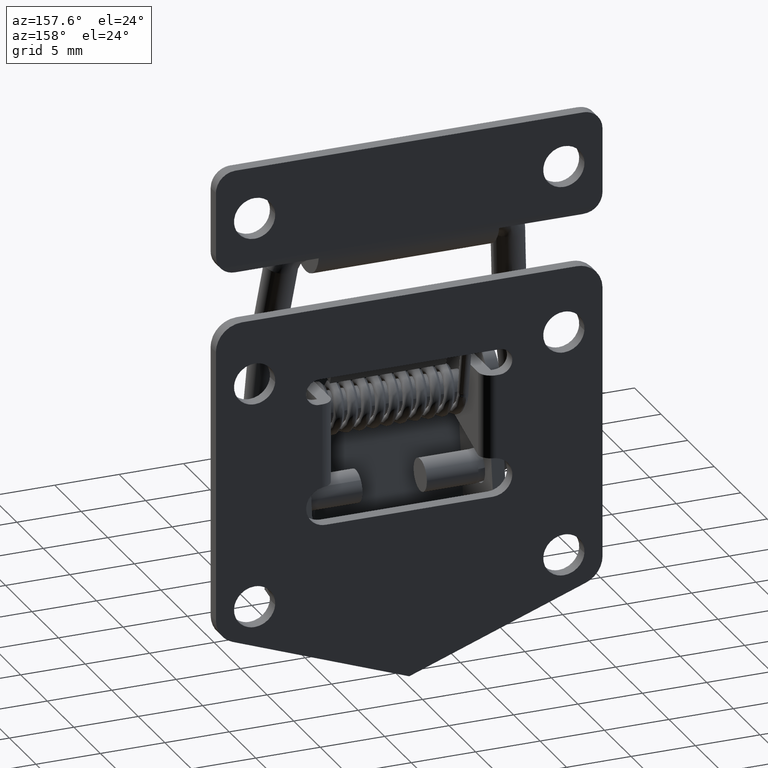
[diagram: clean part render]
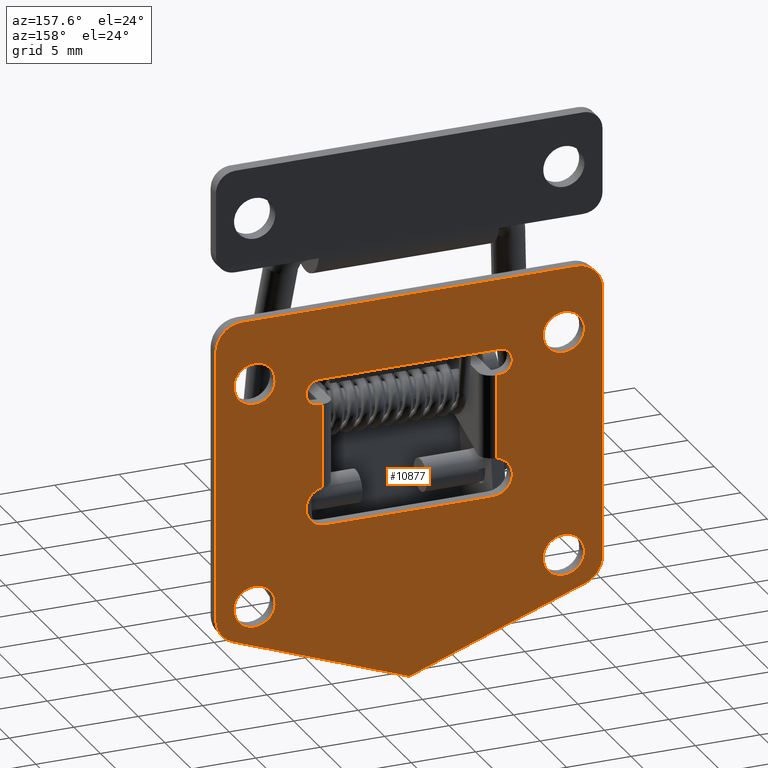
[diagram: same view with one face highlighted and labeled with its STEP entity id]
A machine part, auxiliary view. The second image highlights one B-rep face of the part: STEP entity #10877.
In plain terms, the highlighted face is a freeform B-spline surface patch.
Its self-contained STEP definition (entity closure, byte-faithful):
#8929=CARTESIAN_POINT('',(2.499999999999945,-11.999999999999821,-7.150000000000001));
#8930=VERTEX_POINT('',#8929);
#8931=CARTESIAN_POINT('',(2.499999999999945,-13.595067733969360,-8.624465446791469));
#8932=VERTEX_POINT('',#8931);
#8933=CARTESIAN_POINT('',(2.499999999999945,-11.999999999999821,-7.150000000000001));
#8934=CARTESIAN_POINT('',(2.499999999999945,-13.479024786571138,-7.150000000000001));
#8935=CARTESIAN_POINT('',(2.499999999999945,-13.595067733969358,-8.624465446791469));
#8943=(BOUNDED_CURVE()B_SPLINE_CURVE(2,(#8933,#8934,#8935),.UNSPECIFIED.,.F.,.U.)B_SPLINE_CURVE_WITH_KNOTS((3,3),(0.0,0.236331300623314),.UNSPECIFIED.)CURVE()GEOMETRIC_REPRESENTATION_ITEM()RATIONAL_B_SPLINE_CURVE((1.0,0.723120658616272,0.969723356152087))REPRESENTATION_ITEM(''));
#8944=EDGE_CURVE('',#8930,#8932,#8943,.T.);
#8985=CARTESIAN_POINT('',(2.499999999999945,-10.404932266030279,-8.875534553208532));
#8986=VERTEX_POINT('',#8985);
#8992=CARTESIAN_POINT('',(2.499999999999945,-10.404932266030272,-8.875534553208532));
#8993=CARTESIAN_POINT('',(2.499999999999945,-10.399999999999819,-8.812864171256456));
#8994=CARTESIAN_POINT('',(2.499999999999945,-10.399999999999819,-8.750000000000000));
#8995=CARTESIAN_POINT('',(2.499999999999945,-10.399999999999819,-7.150000000000002));
#8996=CARTESIAN_POINT('',(2.499999999999945,-11.999999999999821,-7.150000000000001));
#9004=(BOUNDED_CURVE()B_SPLINE_CURVE(2,(#8992,#8993,#8994,#8995,#8996),.UNSPECIFIED.,.F.,.U.)B_SPLINE_CURVE_WITH_KNOTS((3,2,3),(0.736331300623314,0.750000000000000,1.0),.UNSPECIFIED.)CURVE()GEOMETRIC_REPRESENTATION_ITEM()RATIONAL_B_SPLINE_CURVE((0.969723356152087,0.983986122570276,1.0,0.707106781186548,1.0))REPRESENTATION_ITEM(''));
#9005=EDGE_CURVE('',#8986,#8930,#9004,.T.);
#9028=CARTESIAN_POINT('',(2.499999999999945,-11.999999999999821,-10.350000000000000));
#9029=VERTEX_POINT('',#9028);
#9030=CARTESIAN_POINT('',(2.499999999999945,-13.595067733969364,-8.624465446791469));
#9031=CARTESIAN_POINT('',(2.499999999999945,-13.599999999999817,-8.687135828743545));
#9032=CARTESIAN_POINT('',(2.499999999999945,-13.599999999999820,-8.750000000000000));
#9033=CARTESIAN_POINT('',(2.499999999999945,-13.599999999999818,-10.350000000000001));
#9034=CARTESIAN_POINT('',(2.499999999999945,-11.999999999999821,-10.350000000000000));
#9042=(BOUNDED_CURVE()B_SPLINE_CURVE(2,(#9030,#9031,#9032,#9033,#9034),.UNSPECIFIED.,.F.,.U.)B_SPLINE_CURVE_WITH_KNOTS((3,2,3),(0.236331300623314,0.250000000000000,0.500000000000000),.UNSPECIFIED.)CURVE()GEOMETRIC_REPRESENTATION_ITEM()RATIONAL_B_SPLINE_CURVE((0.969723356152088,0.983986122570276,1.0,0.707106781186548,1.0))REPRESENTATION_ITEM(''));
#9043=EDGE_CURVE('',#8932,#9029,#9042,.T.);
#9045=CARTESIAN_POINT('',(2.499999999999945,-11.999999999999821,-10.350000000000000));
#9046=CARTESIAN_POINT('',(2.499999999999945,-10.520975213428502,-10.350000000000001));
#9047=CARTESIAN_POINT('',(2.499999999999945,-10.404932266030274,-8.875534553208532));
#9055=(BOUNDED_CURVE()B_SPLINE_CURVE(2,(#9045,#9046,#9047),.UNSPECIFIED.,.F.,.U.)B_SPLINE_CURVE_WITH_KNOTS((3,3),(0.500000000000000,0.736331300623314),.UNSPECIFIED.)CURVE()GEOMETRIC_REPRESENTATION_ITEM()RATIONAL_B_SPLINE_CURVE((1.0,0.723120658616272,0.969723356152087))REPRESENTATION_ITEM(''));
#9056=EDGE_CURVE('',#9029,#8986,#9055,.T.);
#9111=CARTESIAN_POINT('',(2.499999999999945,-11.999999999999821,-24.649999999999999));
#9112=VERTEX_POINT('',#9111);
#9113=CARTESIAN_POINT('',(2.499999999999945,-13.595067733969360,-26.124465446791469));
#9114=VERTEX_POINT('',#9113);
#9115=CARTESIAN_POINT('',(2.499999999999945,-11.999999999999821,-24.649999999999999));
#9116=CARTESIAN_POINT('',(2.499999999999945,-13.479024786571136,-24.649999999999995));
#9117=CARTESIAN_POINT('',(2.499999999999945,-13.595067733969360,-26.124465446791465));
#9125=(BOUNDED_CURVE()B_SPLINE_CURVE(2,(#9115,#9116,#9117),.UNSPECIFIED.,.F.,.U.)B_SPLINE_CURVE_WITH_KNOTS((3,3),(0.0,0.236331300623314),.UNSPECIFIED.)CURVE()GEOMETRIC_REPRESENTATION_ITEM()RATIONAL_B_SPLINE_CURVE((1.0,0.723120658616272,0.969723356152087))REPRESENTATION_ITEM(''));
#9126=EDGE_CURVE('',#9112,#9114,#9125,.T.);
#9167=CARTESIAN_POINT('',(2.499999999999945,-10.404932266030279,-26.375534553208531));
#9168=VERTEX_POINT('',#9167);
#9174=CARTESIAN_POINT('',(2.499999999999945,-10.404932266030277,-26.375534553208531));
#9175=CARTESIAN_POINT('',(2.499999999999945,-10.399999999999817,-26.312864171256457));
#9176=CARTESIAN_POINT('',(2.499999999999945,-10.399999999999819,-26.250000000000000));
#9177=CARTESIAN_POINT('',(2.499999999999945,-10.399999999999819,-24.650000000000002));
#9178=CARTESIAN_POINT('',(2.499999999999945,-11.999999999999821,-24.649999999999999));
#9186=(BOUNDED_CURVE()B_SPLINE_CURVE(2,(#9174,#9175,#9176,#9177,#9178),.UNSPECIFIED.,.F.,.U.)B_SPLINE_CURVE_WITH_KNOTS((3,2,3),(0.736331300623314,0.750000000000000,1.0),.UNSPECIFIED.)CURVE()GEOMETRIC_REPRESENTATION_ITEM()RATIONAL_B_SPLINE_CURVE((0.969723356152088,0.983986122570276,1.0,0.707106781186548,1.0))REPRESENTATION_ITEM(''));
#9187=EDGE_CURVE('',#9168,#9112,#9186,.T.);
#9210=CARTESIAN_POINT('',(2.499999999999945,-11.999999999999821,-27.850000000000001));
#9211=VERTEX_POINT('',#9210);
#9212=CARTESIAN_POINT('',(2.499999999999945,-13.595067733969367,-26.124465446791472));
#9213=CARTESIAN_POINT('',(2.499999999999945,-13.599999999999817,-26.187135828743539));
#9214=CARTESIAN_POINT('',(2.499999999999945,-13.599999999999820,-26.250000000000000));
#9215=CARTESIAN_POINT('',(2.499999999999945,-13.599999999999818,-27.850000000000001));
#9216=CARTESIAN_POINT('',(2.499999999999945,-11.999999999999821,-27.850000000000001));
#9224=(BOUNDED_CURVE()B_SPLINE_CURVE(2,(#9212,#9213,#9214,#9215,#9216),.UNSPECIFIED.,.F.,.U.)B_SPLINE_CURVE_WITH_KNOTS((3,2,3),(0.236331300623314,0.250000000000000,0.500000000000000),.UNSPECIFIED.)CURVE()GEOMETRIC_REPRESENTATION_ITEM()RATIONAL_B_SPLINE_CURVE((0.969723356152087,0.983986122570276,1.0,0.707106781186548,1.0))REPRESENTATION_ITEM(''));
#9225=EDGE_CURVE('',#9114,#9211,#9224,.T.);
#9227=CARTESIAN_POINT('',(2.499999999999945,-11.999999999999821,-27.850000000000001));
#9228=CARTESIAN_POINT('',(2.499999999999945,-10.520975213428502,-27.849999999999994));
#9229=CARTESIAN_POINT('',(2.499999999999945,-10.404932266030274,-26.375534553208531));
#9237=(BOUNDED_CURVE()B_SPLINE_CURVE(2,(#9227,#9228,#9229),.UNSPECIFIED.,.F.,.U.)B_SPLINE_CURVE_WITH_KNOTS((3,3),(0.500000000000000,0.736331300623314),.UNSPECIFIED.)CURVE()GEOMETRIC_REPRESENTATION_ITEM()RATIONAL_B_SPLINE_CURVE((1.0,0.723120658616272,0.969723356152087))REPRESENTATION_ITEM(''));
#9238=EDGE_CURVE('',#9211,#9168,#9237,.T.);
#9293=CARTESIAN_POINT('',(2.499999999999945,12.0,-24.649999999999999));
#9294=VERTEX_POINT('',#9293);
#9295=CARTESIAN_POINT('',(2.499999999999945,10.404932266030460,-26.124465446791469));
#9296=VERTEX_POINT('',#9295);
#9297=CARTESIAN_POINT('',(2.499999999999945,12.0,-24.649999999999999));
#9298=CARTESIAN_POINT('',(2.499999999999945,10.520975213428681,-24.649999999999995));
#9299=CARTESIAN_POINT('',(2.499999999999945,10.404932266030460,-26.124465446791465));
#9307=(BOUNDED_CURVE()B_SPLINE_CURVE(2,(#9297,#9298,#9299),.UNSPECIFIED.,.F.,.U.)B_SPLINE_CURVE_WITH_KNOTS((3,3),(0.0,0.236331300623314),.UNSPECIFIED.)CURVE()GEOMETRIC_REPRESENTATION_ITEM()RATIONAL_B_SPLINE_CURVE((1.0,0.723120658616272,0.969723356152087))REPRESENTATION_ITEM(''));
#9308=EDGE_CURVE('',#9294,#9296,#9307,.T.);
#9349=CARTESIAN_POINT('',(2.499999999999945,13.595067733969540,-26.375534553208531));
#9350=VERTEX_POINT('',#9349);
#9356=CARTESIAN_POINT('',(2.499999999999945,13.595067733969547,-26.375534553208531));
#9357=CARTESIAN_POINT('',(2.499999999999945,13.600000000000007,-26.312864171256457));
#9358=CARTESIAN_POINT('',(2.499999999999945,13.600000000000000,-26.250000000000000));
#9359=CARTESIAN_POINT('',(2.499999999999945,13.600000000000003,-24.650000000000002));
#9360=CARTESIAN_POINT('',(2.499999999999945,12.0,-24.649999999999999));
#9368=(BOUNDED_CURVE()B_SPLINE_CURVE(2,(#9356,#9357,#9358,#9359,#9360),.UNSPECIFIED.,.F.,.U.)B_SPLINE_CURVE_WITH_KNOTS((3,2,3),(0.736331300623314,0.750000000000000,1.0),.UNSPECIFIED.)CURVE()GEOMETRIC_REPRESENTATION_ITEM()RATIONAL_B_SPLINE_CURVE((0.969723356152088,0.983986122570276,1.0,0.707106781186548,1.0))REPRESENTATION_ITEM(''));
#9369=EDGE_CURVE('',#9350,#9294,#9368,.T.);
#9392=CARTESIAN_POINT('',(2.499999999999945,12.0,-27.850000000000001));
#9393=VERTEX_POINT('',#9392);
#9394=CARTESIAN_POINT('',(2.499999999999945,10.404932266030457,-26.124465446791472));
#9395=CARTESIAN_POINT('',(2.499999999999945,10.400000000000002,-26.187135828743539));
#9396=CARTESIAN_POINT('',(2.499999999999945,10.400000000000000,-26.250000000000000));
#9397=CARTESIAN_POINT('',(2.499999999999945,10.400000000000000,-27.850000000000001));
#9398=CARTESIAN_POINT('',(2.499999999999945,12.0,-27.850000000000001));
#9406=(BOUNDED_CURVE()B_SPLINE_CURVE(2,(#9394,#9395,#9396,#9397,#9398),.UNSPECIFIED.,.F.,.U.)B_SPLINE_CURVE_WITH_KNOTS((3,2,3),(0.236331300623314,0.250000000000000,0.500000000000000),.UNSPECIFIED.)CURVE()GEOMETRIC_REPRESENTATION_ITEM()RATIONAL_B_SPLINE_CURVE((0.969723356152087,0.983986122570276,1.0,0.707106781186548,1.0))REPRESENTATION_ITEM(''));
#9407=EDGE_CURVE('',#9296,#9393,#9406,.T.);
#9409=CARTESIAN_POINT('',(2.499999999999945,12.0,-27.850000000000001));
#9410=CARTESIAN_POINT('',(2.499999999999945,13.479024786571321,-27.849999999999994));
#9411=CARTESIAN_POINT('',(2.499999999999945,13.595067733969547,-26.375534553208531));
#9419=(BOUNDED_CURVE()B_SPLINE_CURVE(2,(#9409,#9410,#9411),.UNSPECIFIED.,.F.,.U.)B_SPLINE_CURVE_WITH_KNOTS((3,3),(0.500000000000000,0.736331300623314),.UNSPECIFIED.)CURVE()GEOMETRIC_REPRESENTATION_ITEM()RATIONAL_B_SPLINE_CURVE((1.0,0.723120658616272,0.969723356152087))REPRESENTATION_ITEM(''));
#9420=EDGE_CURVE('',#9393,#9350,#9419,.T.);
#9475=CARTESIAN_POINT('',(2.499999999999945,12.0,-7.150000000000001));
#9476=VERTEX_POINT('',#9475);
#9477=CARTESIAN_POINT('',(2.499999999999945,10.404932266030460,-8.624465446791469));
#9478=VERTEX_POINT('',#9477);
#9479=CARTESIAN_POINT('',(2.499999999999945,12.0,-7.150000000000001));
#9480=CARTESIAN_POINT('',(2.499999999999945,10.520975213428681,-7.150000000000002));
#9481=CARTESIAN_POINT('',(2.499999999999945,10.404932266030460,-8.624465446791469));
#9489=(BOUNDED_CURVE()B_SPLINE_CURVE(2,(#9479,#9480,#9481),.UNSPECIFIED.,.F.,.U.)B_SPLINE_CURVE_WITH_KNOTS((3,3),(0.0,0.236331300623314),.UNSPECIFIED.)CURVE()GEOMETRIC_REPRESENTATION_ITEM()RATIONAL_B_SPLINE_CURVE((1.0,0.723120658616272,0.969723356152087))REPRESENTATION_ITEM(''));
#9490=EDGE_CURVE('',#9476,#9478,#9489,.T.);
#9531=CARTESIAN_POINT('',(2.499999999999945,13.595067733969540,-8.875534553208532));
#9532=VERTEX_POINT('',#9531);
#9538=CARTESIAN_POINT('',(2.499999999999945,13.595067733969543,-8.875534553208532));
#9539=CARTESIAN_POINT('',(2.499999999999945,13.600000000000000,-8.812864171256456));
#9540=CARTESIAN_POINT('',(2.499999999999945,13.600000000000000,-8.750000000000000));
#9541=CARTESIAN_POINT('',(2.499999999999945,13.600000000000003,-7.150000000000002));
#9542=CARTESIAN_POINT('',(2.499999999999945,12.0,-7.150000000000001));
#9550=(BOUNDED_CURVE()B_SPLINE_CURVE(2,(#9538,#9539,#9540,#9541,#9542),.UNSPECIFIED.,.F.,.U.)B_SPLINE_CURVE_WITH_KNOTS((3,2,3),(0.736331300623314,0.750000000000000,1.0),.UNSPECIFIED.)CURVE()GEOMETRIC_REPRESENTATION_ITEM()RATIONAL_B_SPLINE_CURVE((0.969723356152087,0.983986122570276,1.0,0.707106781186548,1.0))REPRESENTATION_ITEM(''));
#9551=EDGE_CURVE('',#9532,#9476,#9550,.T.);
#9574=CARTESIAN_POINT('',(2.499999999999945,12.0,-10.350000000000000));
#9575=VERTEX_POINT('',#9574);
#9576=CARTESIAN_POINT('',(2.499999999999945,10.404932266030460,-8.624465446791469));
#9577=CARTESIAN_POINT('',(2.499999999999945,10.400000000000004,-8.687135828743545));
#9578=CARTESIAN_POINT('',(2.499999999999945,10.400000000000000,-8.750000000000000));
#9579=CARTESIAN_POINT('',(2.499999999999945,10.400000000000000,-10.350000000000001));
#9580=CARTESIAN_POINT('',(2.499999999999945,12.0,-10.350000000000000));
#9588=(BOUNDED_CURVE()B_SPLINE_CURVE(2,(#9576,#9577,#9578,#9579,#9580),.UNSPECIFIED.,.F.,.U.)B_SPLINE_CURVE_WITH_KNOTS((3,2,3),(0.236331300623314,0.250000000000000,0.500000000000000),.UNSPECIFIED.)CURVE()GEOMETRIC_REPRESENTATION_ITEM()RATIONAL_B_SPLINE_CURVE((0.969723356152087,0.983986122570276,1.0,0.707106781186548,1.0))REPRESENTATION_ITEM(''));
#9589=EDGE_CURVE('',#9478,#9575,#9588,.T.);
#9591=CARTESIAN_POINT('',(2.499999999999945,12.0,-10.350000000000000));
#9592=CARTESIAN_POINT('',(2.499999999999945,13.479024786571321,-10.350000000000001));
#9593=CARTESIAN_POINT('',(2.499999999999945,13.595067733969547,-8.875534553208532));
#9601=(BOUNDED_CURVE()B_SPLINE_CURVE(2,(#9591,#9592,#9593),.UNSPECIFIED.,.F.,.U.)B_SPLINE_CURVE_WITH_KNOTS((3,3),(0.500000000000000,0.736331300623314),.UNSPECIFIED.)CURVE()GEOMETRIC_REPRESENTATION_ITEM()RATIONAL_B_SPLINE_CURVE((1.0,0.723120658616272,0.969723356152087))REPRESENTATION_ITEM(''));
#9602=EDGE_CURVE('',#9575,#9532,#9601,.T.);
#9653=CARTESIAN_POINT('',(2.499999999999945,6.750000000000000,-17.770980054224999));
#9654=VERTEX_POINT('',#9653);
#9664=CARTESIAN_POINT('',(2.499999999999945,6.750000000000000,-11.250000000000000));
#9665=VERTEX_POINT('',#9664);
#9666=CARTESIAN_POINT('',(2.499999999999945,6.750000000000000,-11.250000000000000));
#9667=CARTESIAN_POINT('',(2.499999999999945,6.750000000000000,-17.770980054224999));
#9668=QUASI_UNIFORM_CURVE('',1,(#9666,#9667),.UNSPECIFIED.,.F.,.U.);
#9669=EDGE_CURVE('',#9665,#9654,#9668,.T.);
#9723=CARTESIAN_POINT('',(2.499999999999945,-6.749999999999830,-11.250000000000000));
#9724=VERTEX_POINT('',#9723);
#9740=CARTESIAN_POINT('',(2.499999999999945,-6.749999999999830,-17.770980054224999));
#9741=VERTEX_POINT('',#9740);
#9742=CARTESIAN_POINT('',(2.499999999999945,-6.749999999999830,-17.770980054224999));
#9743=CARTESIAN_POINT('',(2.499999999999945,-6.749999999999830,-11.250000000000000));
#9744=QUASI_UNIFORM_CURVE('',1,(#9742,#9743),.UNSPECIFIED.,.F.,.U.);
#9745=EDGE_CURVE('',#9741,#9724,#9744,.T.);
#10053=CARTESIAN_POINT('',(2.500000000000000,6.999999947640291,-9.250000000000000));
#10054=VERTEX_POINT('',#10053);
#10060=CARTESIAN_POINT('',(2.499999999999945,-7.0,-9.250000000000000));
#10061=VERTEX_POINT('',#10060);
#10062=CARTESIAN_POINT('',(2.500000000000000,6.999999947640291,-9.250000000000000));
#10063=CARTESIAN_POINT('',(2.499999999999945,-7.0,-9.250000000000000));
#10064=QUASI_UNIFORM_CURVE('',1,(#10062,#10063),.UNSPECIFIED.,.F.,.U.);
#10065=EDGE_CURVE('',#10054,#10061,#10064,.T.);
#10112=CARTESIAN_POINT('',(2.499999999999945,7.000000000000171,-11.250000000000000));
#10113=VERTEX_POINT('',#10112);
#10119=CARTESIAN_POINT('',(2.499999999999945,7.000000000000171,-11.250000000000000));
#10120=CARTESIAN_POINT('',(2.499999999999945,7.577350280825325,-11.250000000000000));
#10121=CARTESIAN_POINT('',(2.499999999999945,7.866025412511255,-10.749999984885010));
#10122=CARTESIAN_POINT('',(2.499999999999945,8.154700544197185,-10.249999969770011));
#10123=CARTESIAN_POINT('',(2.499999999999945,7.866025386331317,-9.749999969770011));
#10124=CARTESIAN_POINT('',(2.499999999999945,7.577350228465445,-9.249999969770009));
#10125=CARTESIAN_POINT('',(2.500000000000000,6.999999947640291,-9.250000000000000));
#10133=(BOUNDED_CURVE()B_SPLINE_CURVE(2,(#10119,#10120,#10121,#10122,#10123,#10124,#10125),.UNSPECIFIED.,.F.,.U.)B_SPLINE_CURVE_WITH_KNOTS((3,2,2,3),(0.0,0.333333333333333,0.666666666666667,1.0),.UNSPECIFIED.)CURVE()GEOMETRIC_REPRESENTATION_ITEM()RATIONAL_B_SPLINE_CURVE((1.0,0.866025399421115,1.0,0.866025399421115,1.0,0.866025399421115,1.0))REPRESENTATION_ITEM(''));
#10134=EDGE_CURVE('',#10113,#10054,#10133,.T.);
#10151=CARTESIAN_POINT('',(2.499999999999945,6.750000000000000,-11.250000000000000));
#10152=CARTESIAN_POINT('',(2.499999999999945,7.000000000000171,-11.250000000000000));
#10153=QUASI_UNIFORM_CURVE('',1,(#10151,#10152),.UNSPECIFIED.,.F.,.U.);
#10154=EDGE_CURVE('',#9665,#10113,#10153,.T.);
#10218=CARTESIAN_POINT('',(2.499999999999945,6.500000000000000,-20.750000000000000));
#10219=VERTEX_POINT('',#10218);
#10220=CARTESIAN_POINT('',(2.499999999999945,6.500000000000000,-20.750000000000000));
#10221=CARTESIAN_POINT('',(2.499999999999946,7.879392359683729,-20.749999999999996));
#10222=CARTESIAN_POINT('',(2.499999999999945,7.994745784182441,-19.375439390419519));
#10223=CARTESIAN_POINT('',(2.499999999999946,8.110099208681151,-18.000878780839038));
#10224=CARTESIAN_POINT('',(2.499999999999945,6.750000000000000,-17.770980054224999));
#10232=(BOUNDED_CURVE()B_SPLINE_CURVE(2,(#10220,#10221,#10222,#10223,#10224),.UNSPECIFIED.,.F.,.U.)B_SPLINE_CURVE_WITH_KNOTS((3,2,3),(0.0,0.500000000000000,1.0),.UNSPECIFIED.)CURVE()GEOMETRIC_REPRESENTATION_ITEM()RATIONAL_B_SPLINE_CURVE((1.0,0.736079567804894,1.0,0.736079567804894,1.0))REPRESENTATION_ITEM(''));
#10233=EDGE_CURVE('',#10219,#9654,#10232,.T.);
#10276=CARTESIAN_POINT('',(2.499999999999945,-6.499999973820059,-20.750000000000000));
#10277=VERTEX_POINT('',#10276);
#10283=CARTESIAN_POINT('',(2.499999999999945,-6.499999973820059,-20.750000000000000));
#10284=CARTESIAN_POINT('',(2.499999999999945,6.500000000000000,-20.750000000000000));
#10285=QUASI_UNIFORM_CURVE('',1,(#10283,#10284),.UNSPECIFIED.,.F.,.U.);
#10286=EDGE_CURVE('',#10277,#10219,#10285,.T.);
#10316=CARTESIAN_POINT('',(2.499999999999945,-6.749999999999819,-17.770980054225060));
#10317=CARTESIAN_POINT('',(2.499999999999945,-8.110099220591916,-18.000878782852169));
#10318=CARTESIAN_POINT('',(2.499999999999945,-7.994745783087783,-19.375439403463549));
#10319=CARTESIAN_POINT('',(2.499999999999945,-7.879392345583648,-20.750000024074929));
#10320=CARTESIAN_POINT('',(2.499999999999945,-6.499999973820059,-20.750000000000000));
#10328=(BOUNDED_CURVE()B_SPLINE_CURVE(2,(#10316,#10317,#10318,#10319,#10320),.UNSPECIFIED.,.F.,.U.)B_SPLINE_CURVE_WITH_KNOTS((3,2,3),(0.0,0.500000000000000,1.0),.UNSPECIFIED.)CURVE()GEOMETRIC_REPRESENTATION_ITEM()RATIONAL_B_SPLINE_CURVE((1.0,0.736079564851363,1.0,0.736079564851363,1.0))REPRESENTATION_ITEM(''));
#10329=EDGE_CURVE('',#9741,#10277,#10328,.T.);
#10390=CARTESIAN_POINT('',(2.499999999999945,-7.0,-11.250000000000000));
#10391=VERTEX_POINT('',#10390);
#10392=CARTESIAN_POINT('',(2.499999999999945,-7.0,-11.250000000000000));
#10393=CARTESIAN_POINT('',(2.499999999999945,-6.749999999999830,-11.250000000000000));
#10394=QUASI_UNIFORM_CURVE('',1,(#10392,#10393),.UNSPECIFIED.,.F.,.U.);
#10395=EDGE_CURVE('',#10391,#9724,#10394,.T.);
#10450=CARTESIAN_POINT('',(2.499999999999945,-7.0,-9.250000000000002));
#10451=CARTESIAN_POINT('',(2.499999999999945,-8.0,-9.250000000000002));
#10452=CARTESIAN_POINT('',(2.499999999999945,-8.0,-10.250000000000000));
#10453=CARTESIAN_POINT('',(2.499999999999945,-8.0,-11.249999999999998));
#10454=CARTESIAN_POINT('',(2.499999999999945,-7.0,-11.250000000000000));
#10462=(BOUNDED_CURVE()B_SPLINE_CURVE(2,(#10450,#10451,#10452,#10453,#10454),.UNSPECIFIED.,.F.,.U.)B_SPLINE_CURVE_WITH_KNOTS((3,2,3),(0.0,0.500000000000000,1.0),.UNSPECIFIED.)CURVE()GEOMETRIC_REPRESENTATION_ITEM()RATIONAL_B_SPLINE_CURVE((1.0,0.707106781186548,1.0,0.707106781186548,1.0))REPRESENTATION_ITEM(''));
#10463=EDGE_CURVE('',#10061,#10391,#10462,.T.);
#10500=CARTESIAN_POINT('',(2.499999999999945,-15.0,-5.749999999999920));
#10501=VERTEX_POINT('',#10500);
#10507=CARTESIAN_POINT('',(2.499999999999945,-13.000000104719700,-3.749999999999920));
#10508=VERTEX_POINT('',#10507);
#10509=CARTESIAN_POINT('',(2.499999999999945,-13.000000104719700,-3.749999999999923));
#10510=CARTESIAN_POINT('',(2.499999999999945,-14.999999999999996,-3.750000104719619));
#10511=CARTESIAN_POINT('',(2.499999999999945,-15.0,-5.749999999999920));
#10519=(BOUNDED_CURVE()B_SPLINE_CURVE(2,(#10509,#10510,#10511),.UNSPECIFIED.,.F.,.U.)CURVE()GEOMETRIC_REPRESENTATION_ITEM()QUASI_UNIFORM_CURVE()RATIONAL_B_SPLINE_CURVE((1.0,0.707106799698550,1.0))REPRESENTATION_ITEM(''));
#10520=EDGE_CURVE('',#10508,#10501,#10519,.T.);
#10542=CARTESIAN_POINT('',(2.499999999999945,-15.0,-26.853125685840752));
#10543=VERTEX_POINT('',#10542);
#10549=CARTESIAN_POINT('',(2.499999999999945,-15.0,-26.853125685840752));
#10550=CARTESIAN_POINT('',(2.499999999999945,-15.0,-5.749999999999920));
#10551=QUASI_UNIFORM_CURVE('',1,(#10549,#10550),.UNSPECIFIED.,.F.,.U.);
#10552=EDGE_CURVE('',#10543,#10501,#10551,.T.);
#10587=CARTESIAN_POINT('',(2.499999999999945,-13.688506999999900,-28.730887999999901));
#10588=VERTEX_POINT('',#10587);
#10594=CARTESIAN_POINT('',(2.499999999999945,-15.0,-26.853125685840752));
#10595=CARTESIAN_POINT('',(2.499999999999945,-15.000001597187962,-28.250006389303120));
#10596=CARTESIAN_POINT('',(2.499999999999945,-13.688506999999900,-28.730887999999901));
#10604=(BOUNDED_CURVE()B_SPLINE_CURVE(2,(#10594,#10595,#10596),.UNSPECIFIED.,.F.,.U.)CURVE()GEOMETRIC_REPRESENTATION_ITEM()QUASI_UNIFORM_CURVE()RATIONAL_B_SPLINE_CURVE((1.0,0.819832902107006,1.0))REPRESENTATION_ITEM(''));
#10605=EDGE_CURVE('',#10543,#10588,#10604,.T.);
#10623=CARTESIAN_POINT('',(2.499999999999945,3.552714E-015,-33.750006999999897));
#10624=VERTEX_POINT('',#10623);
#10630=CARTESIAN_POINT('',(2.499999999999945,3.552714E-015,-33.750006999999897));
#10631=CARTESIAN_POINT('',(2.499999999999945,-13.688506999999900,-28.730887999999901));
#10632=QUASI_UNIFORM_CURVE('',1,(#10630,#10631),.UNSPECIFIED.,.F.,.U.);
#10633=EDGE_CURVE('',#10624,#10588,#10632,.T.);
#10651=CARTESIAN_POINT('',(2.499999999999945,13.688476000000099,-28.730896000000001));
#10652=VERTEX_POINT('',#10651);
#10658=CARTESIAN_POINT('',(2.499999999999945,13.688476000000099,-28.730896000000001));
#10659=CARTESIAN_POINT('',(2.499999999999945,3.552714E-015,-33.750006999999897));
#10660=QUASI_UNIFORM_CURVE('',1,(#10658,#10659),.UNSPECIFIED.,.F.,.U.);
#10661=EDGE_CURVE('',#10652,#10624,#10660,.T.);
#10696=CARTESIAN_POINT('',(2.499999999999945,15.0,-26.853126000000000));
#10697=VERTEX_POINT('',#10696);
#10703=CARTESIAN_POINT('',(2.499999999999945,13.688476000000110,-28.730896000000008));
#10704=CARTESIAN_POINT('',(2.499999999999945,14.999978550542117,-28.250011431261061));
#10705=CARTESIAN_POINT('',(2.499999999999945,15.0,-26.853126000000000));
#10713=(BOUNDED_CURVE()B_SPLINE_CURVE(2,(#10703,#10704,#10705),.UNSPECIFIED.,.F.,.U.)CURVE()GEOMETRIC_REPRESENTATION_ITEM()QUASI_UNIFORM_CURVE()RATIONAL_B_SPLINE_CURVE((1.0,0.819838171590726,1.0))REPRESENTATION_ITEM(''));
#10714=EDGE_CURVE('',#10652,#10697,#10713,.T.);
#10732=CARTESIAN_POINT('',(2.499999999999945,15.0,-5.749999999999909));
#10733=VERTEX_POINT('',#10732);
#10739=CARTESIAN_POINT('',(2.499999999999945,15.0,-5.749999999999909));
#10740=CARTESIAN_POINT('',(2.499999999999945,15.0,-26.853126000000000));
#10741=QUASI_UNIFORM_CURVE('',1,(#10739,#10740),.UNSPECIFIED.,.F.,.U.);
#10742=EDGE_CURVE('',#10733,#10697,#10741,.T.);
#10779=CARTESIAN_POINT('',(2.499999999999945,12.999999895280419,-3.749999999999915));
#10780=VERTEX_POINT('',#10779);
#10786=CARTESIAN_POINT('',(2.499999999999945,15.0,-5.749999999999909));
#10787=CARTESIAN_POINT('',(2.499999999999945,15.000000000000167,-4.921572844582018));
#10788=CARTESIAN_POINT('',(2.499999999999945,14.414213525349240,-4.335786400602797));
#10789=CARTESIAN_POINT('',(2.499999999999945,13.828427050698311,-3.749999956623575));
#10790=CARTESIAN_POINT('',(2.499999999999945,12.999999895280419,-3.749999999999912));
#10798=(BOUNDED_CURVE()B_SPLINE_CURVE(2,(#10786,#10787,#10788,#10789,#10790),.UNSPECIFIED.,.F.,.U.)B_SPLINE_CURVE_WITH_KNOTS((3,2,3),(0.0,0.500000000000000,1.0),.UNSPECIFIED.)CURVE()GEOMETRIC_REPRESENTATION_ITEM()RATIONAL_B_SPLINE_CURVE((1.0,0.923879527501973,1.0,0.923879527501973,1.0))REPRESENTATION_ITEM(''));
#10799=EDGE_CURVE('',#10733,#10780,#10798,.T.);
#10816=CARTESIAN_POINT('',(2.499999999999945,-13.000000104719700,-3.749999999999920));
#10817=CARTESIAN_POINT('',(2.499999999999945,12.999999895280419,-3.749999999999915));
#10818=QUASI_UNIFORM_CURVE('',1,(#10816,#10817),.UNSPECIFIED.,.F.,.U.);
#10819=EDGE_CURVE('',#10508,#10780,#10818,.T.);
#10825=CARTESIAN_POINT('',(2.500000000000000,-16.498499941854181,-2.251499708495747));
#10826=CARTESIAN_POINT('',(2.500000000000000,16.498500746516889,-2.251499708495747));
#10827=CARTESIAN_POINT('',(2.500000000000000,-16.498499941854181,-35.248508096166958));
#10828=CARTESIAN_POINT('',(2.500000000000000,16.498500746516889,-35.248508096166958));
#10829=B_SPLINE_SURFACE_WITH_KNOTS('',1,1,((#10825,#10827),(#10826,#10828)),.UNSPECIFIED.,.F.,.F.,.U.,(2,2),(2,2),(0.0,32.997000688371060),(0.0,32.997008387671208),.UNSPECIFIED.);
#10830=ORIENTED_EDGE('',*,*,#10819,.F.);
#10831=ORIENTED_EDGE('',*,*,#10520,.T.);
#10832=ORIENTED_EDGE('',*,*,#10552,.F.);
#10833=ORIENTED_EDGE('',*,*,#10605,.T.);
#10834=ORIENTED_EDGE('',*,*,#10633,.F.);
#10835=ORIENTED_EDGE('',*,*,#10661,.F.);
#10836=ORIENTED_EDGE('',*,*,#10714,.T.);
#10837=ORIENTED_EDGE('',*,*,#10742,.F.);
#10838=ORIENTED_EDGE('',*,*,#10799,.T.);
#10839=EDGE_LOOP('',(#10830,#10831,#10832,#10833,#10834,#10835,#10836,#10837,#10838));
#10840=FACE_OUTER_BOUND('',#10839,.T.);
#10841=ORIENTED_EDGE('',*,*,#10329,.F.);
#10842=ORIENTED_EDGE('',*,*,#9745,.T.);
#10843=ORIENTED_EDGE('',*,*,#10395,.F.);
#10844=ORIENTED_EDGE('',*,*,#10463,.F.);
#10845=ORIENTED_EDGE('',*,*,#10065,.F.);
#10846=ORIENTED_EDGE('',*,*,#10134,.F.);
#10847=ORIENTED_EDGE('',*,*,#10154,.F.);
#10848=ORIENTED_EDGE('',*,*,#9669,.T.);
#10849=ORIENTED_EDGE('',*,*,#10233,.F.);
#10850=ORIENTED_EDGE('',*,*,#10286,.F.);
#10851=EDGE_LOOP('',(#10841,#10842,#10843,#10844,#10845,#10846,#10847,#10848,#10849,#10850));
#10852=FACE_BOUND('',#10851,.T.);
#10853=ORIENTED_EDGE('',*,*,#9602,.F.);
#10854=ORIENTED_EDGE('',*,*,#9589,.F.);
#10855=ORIENTED_EDGE('',*,*,#9490,.F.);
#10856=ORIENTED_EDGE('',*,*,#9551,.F.);
#10857=EDGE_LOOP('',(#10853,#10854,#10855,#10856));
#10858=FACE_BOUND('',#10857,.T.);
#10859=ORIENTED_EDGE('',*,*,#9420,.F.);
#10860=ORIENTED_EDGE('',*,*,#9407,.F.);
#10861=ORIENTED_EDGE('',*,*,#9308,.F.);
#10862=ORIENTED_EDGE('',*,*,#9369,.F.);
#10863=EDGE_LOOP('',(#10859,#10860,#10861,#10862));
#10864=FACE_BOUND('',#10863,.T.);
#10865=ORIENTED_EDGE('',*,*,#9238,.F.);
#10866=ORIENTED_EDGE('',*,*,#9225,.F.);
#10867=ORIENTED_EDGE('',*,*,#9126,.F.);
#10868=ORIENTED_EDGE('',*,*,#9187,.F.);
#10869=EDGE_LOOP('',(#10865,#10866,#10867,#10868));
#10870=FACE_BOUND('',#10869,.T.);
#10871=ORIENTED_EDGE('',*,*,#9056,.F.);
#10872=ORIENTED_EDGE('',*,*,#9043,.F.);
#10873=ORIENTED_EDGE('',*,*,#8944,.F.);
#10874=ORIENTED_EDGE('',*,*,#9005,.F.);
#10875=EDGE_LOOP('',(#10871,#10872,#10873,#10874));
#10876=FACE_BOUND('',#10875,.T.);
#10877=ADVANCED_FACE('',(#10840,#10852,#10858,#10864,#10870,#10876),#10829,.F.);